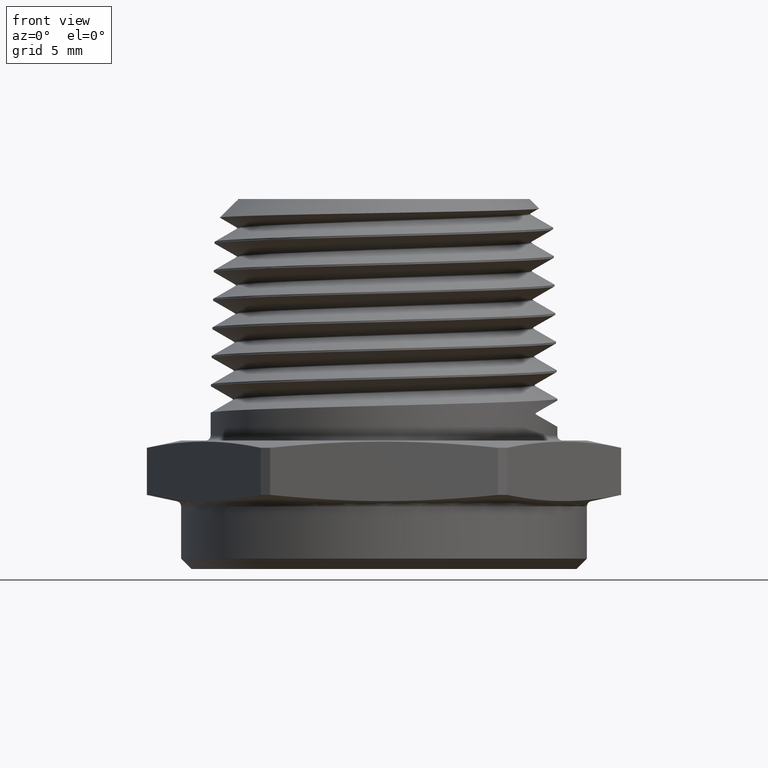
[diagram: clean part render]
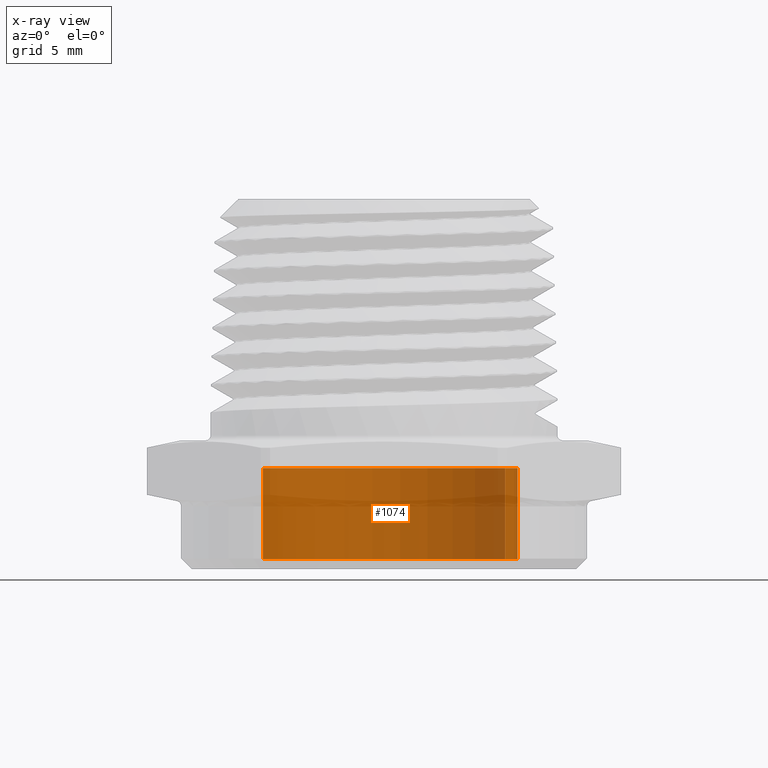
[diagram: x-ray — body ghosted, one internal face saturated and labeled with its STEP entity id]
A machine part, front view, then the same camera in x-ray: the body is ghosted and one INTERNAL B-rep face — a face not visible from any outside direction — is saturated and labeled: STEP entity #1074.
In plain terms, the highlighted cylindrical surface (partial cylindrical patch) has radius 6.604 mm, axis along (-0, -0, 1).
Its self-contained STEP definition (entity closure, byte-faithful):
#117 = CIRCLE ( 'NONE', #2833, 0.2599999999999999000 ) ;
#130 = LINE ( 'NONE', #2124, #139 ) ;
#131 = CIRCLE ( 'NONE', #2834, 0.2599999999999999000 ) ;
#138 = LINE ( 'NONE', #2129, #141 ) ;
#139 = VECTOR ( 'NONE', #2128, 39.37007874015748100 ) ;
#141 = VECTOR ( 'NONE', #2130, 39.37007874015748100 ) ;
#710 = VERTEX_POINT ( 'NONE', #3269 ) ;
#714 = VERTEX_POINT ( 'NONE', #3279 ) ;
#720 = VERTEX_POINT ( 'NONE', #3241 ) ;
#721 = VERTEX_POINT ( 'NONE', #3242 ) ;
#738 = EDGE_LOOP ( 'NONE', ( #850, #849, #851, #855 ) ) ;
#849 = ORIENTED_EDGE ( 'NONE', *, *, #2301, .T. ) ;
#850 = ORIENTED_EDGE ( 'NONE', *, *, #2297, .T. ) ;
#851 = ORIENTED_EDGE ( 'NONE', *, *, #2299, .T. ) ;
#855 = ORIENTED_EDGE ( 'NONE', *, *, #2302, .F. ) ;
#867 = FACE_OUTER_BOUND ( 'NONE', #738, .T. ) ;
#868 = CYLINDRICAL_SURFACE ( 'NONE', #5580, 0.2599999999999999000 ) ;
#1074 = ADVANCED_FACE ( 'NONE', ( #867 ), #868, .T. ) ;
#2120 = CARTESIAN_POINT ( 'NONE',  ( -2.190163192932989600E-017, -3.210673074119961500E-032, 0.1868503937007873800 ) ) ;
#2121 = DIRECTION ( 'NONE',  ( -1.519290839321567800E-064, 3.038581678643135600E-064, -1.000000000000000000 ) ) ;
#2122 = DIRECTION ( 'NONE',  ( 1.000000000000000000, 5.551115123125785200E-017, 0.0000000000000000000 ) ) ;
#2124 = CARTESIAN_POINT ( 'NONE',  ( 0.2599999999999998400, 4.627371609795817300E-017, 0.1968503937007874100 ) ) ;
#2125 = CARTESIAN_POINT ( 'NONE',  ( -2.190163192932989600E-017, -3.210673074119961500E-032, 0.01000000000000013200 ) ) ;
#2126 = DIRECTION ( 'NONE',  ( 1.519290839321567800E-064, -3.038581678643135600E-064, 1.000000000000000000 ) ) ;
#2127 = DIRECTION ( 'NONE',  ( 1.000000000000000000, 5.551115123125785200E-017, 0.0000000000000000000 ) ) ;
#2128 = DIRECTION ( 'NONE',  ( -1.519290839321567800E-064, 3.038581678643135600E-064, -1.000000000000000000 ) ) ;
#2129 = CARTESIAN_POINT ( 'NONE',  ( -0.2599999999999999000, -1.443289932012706600E-017, 0.1968503937007874100 ) ) ;
#2130 = DIRECTION ( 'NONE',  ( -1.519290839321567800E-064, 3.038581678643135600E-064, -1.000000000000000000 ) ) ;
#2297 = EDGE_CURVE ( 'NONE', #721, #720, #117, .T. ) ;
#2299 = EDGE_CURVE ( 'NONE', #714, #710, #131, .T. ) ;
#2301 = EDGE_CURVE ( 'NONE', #720, #714, #130, .T. ) ;
#2302 = EDGE_CURVE ( 'NONE', #721, #710, #138, .T. ) ;
#2833 = AXIS2_PLACEMENT_3D ( 'NONE', #2120, #2121, #2122 ) ;
#2834 = AXIS2_PLACEMENT_3D ( 'NONE', #2125, #2126, #2127 ) ;
#3241 = CARTESIAN_POINT ( 'NONE',  ( 0.2599999999999999500, 4.627371609795819800E-017, 0.1868503937007873800 ) ) ;
#3242 = CARTESIAN_POINT ( 'NONE',  ( -0.2600000000000000100, -1.443289932012707200E-017, 0.1868503937007873800 ) ) ;
#3253 = DIRECTION ( 'NONE',  ( -1.000000000000000000, -5.551115123125785200E-017, 0.0000000000000000000 ) ) ;
#3254 = DIRECTION ( 'NONE',  ( -1.519290839321567800E-064, 3.038581678643135600E-064, -1.000000000000000000 ) ) ;
#3255 = CARTESIAN_POINT ( 'NONE',  ( -2.190163192932989600E-017, -3.210673074119961500E-032, 0.1968503937007874100 ) ) ;
#3269 = CARTESIAN_POINT ( 'NONE',  ( -0.2600000000000000100, -1.443289932012707200E-017, 0.01000000000000013200 ) ) ;
#3279 = CARTESIAN_POINT ( 'NONE',  ( 0.2599999999999999500, 4.627371609795819800E-017, 0.01000000000000013200 ) ) ;
#5580 = AXIS2_PLACEMENT_3D ( 'NONE', #3255, #3254, #3253 ) ;